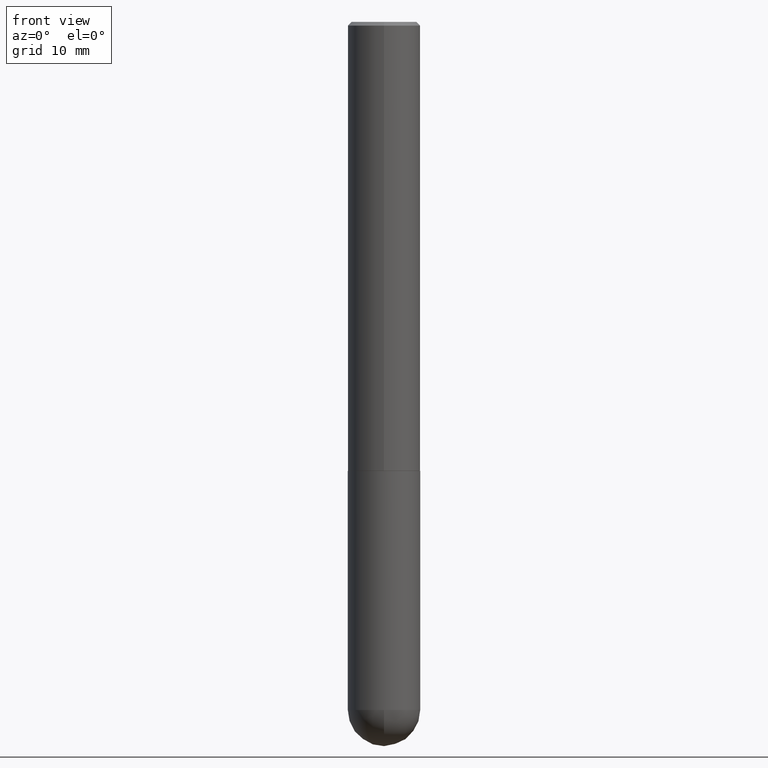
[diagram: clean part render]
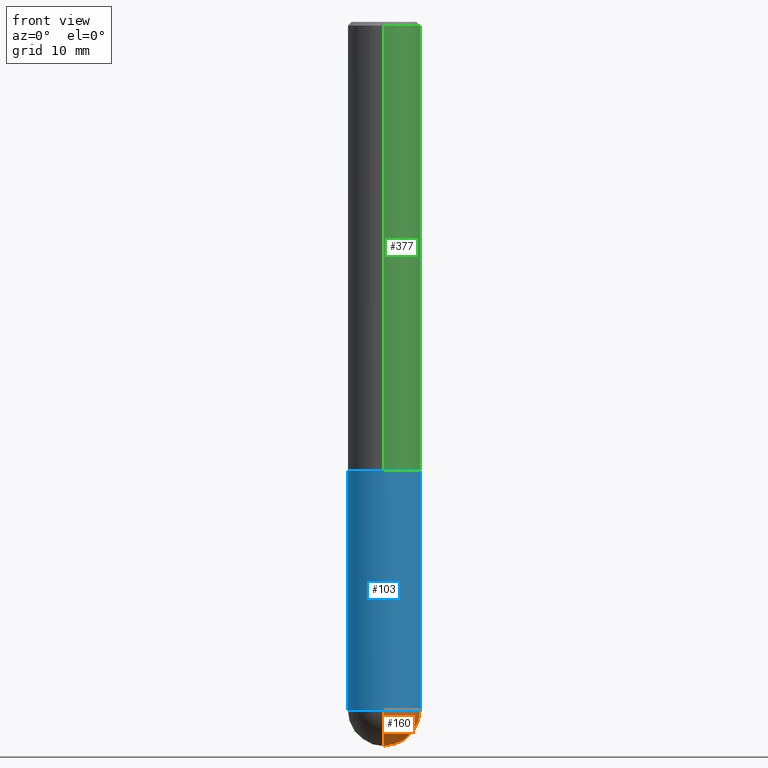
[diagram: same view with three faces highlighted in distinct colors, each labeled with its STEP entity id]
A machine part, front view with three faces highlighted in distinct colors.
Their STEP definitions:

[orange] entity #160 — the highlighted spherical surface has radius 5 mm.
#1 = DIRECTION ( 'NONE',  ( -7.105427357601001070E-15, -1.000000000000000000, 0.000000000000000000 ) ) ;
#4 = AXIS2_PLACEMENT_3D ( 'NONE', #114, #113, #147 ) ;
#10 = DIRECTION ( 'NONE',  ( -1.000000000000000000, 6.982962677686265922E-15, -4.883557194083113462E-29 ) ) ;
#11 = CARTESIAN_POINT ( 'NONE',  ( -1.398703375343667858E-15, -0.1968500000000133754, -3.740150000000000308 ) ) ;
#13 = ORIENTED_EDGE ( 'NONE', *, *, #131, .F. ) ;
#25 = CARTESIAN_POINT ( 'NONE',  ( 8.815300377539453183E-29, -1.353284629761424370E-14, -3.740150000000000308 ) ) ;
#30 = CARTESIAN_POINT ( 'NONE',  ( 9.146420155453340551E-29, -1.305866392947419340E-14, -3.740150000000000752 ) ) ;
#34 = CARTESIAN_POINT ( 'NONE',  ( 0.1968499999999999694, -1.216510656783075637E-14, -3.740150000000000752 ) ) ;
#36 = CARTESIAN_POINT ( 'NONE',  ( 8.815300377539453183E-29, -1.353284629761424370E-14, -3.740150000000000308 ) ) ;
#39 = VERTEX_POINT ( 'NONE', #259 ) ;
#66 = ORIENTED_EDGE ( 'NONE', *, *, #94, .F. ) ;
#82 = VERTEX_POINT ( 'NONE', #34 ) ;
#89 = AXIS2_PLACEMENT_3D ( 'NONE', #134, #257, #326 ) ;
#94 = EDGE_CURVE ( 'NONE', #39, #287, #401, .T. ) ;
#110 = FACE_OUTER_BOUND ( 'NONE', #311, .T. ) ;
#113 = DIRECTION ( 'NONE',  ( 1.000000000000000000, -6.982962677686265922E-15, 4.883557194083112340E-29 ) ) ;
#114 = CARTESIAN_POINT ( 'NONE',  ( 8.815300377539453183E-29, -1.353284629761424370E-14, -3.740150000000000308 ) ) ;
#122 = EDGE_CURVE ( 'NONE', #287, #82, #283, .T. ) ;
#131 = EDGE_CURVE ( 'NONE', #82, #346, #355, .T. ) ;
#134 = CARTESIAN_POINT ( 'NONE',  ( 9.146420155453340551E-29, -1.305866392947419340E-14, -3.740150000000000752 ) ) ;
#140 = DIRECTION ( 'NONE',  ( -1.000000000000000000, 7.105427357601001070E-15, -4.926315508542082329E-29 ) ) ;
#147 = DIRECTION ( 'NONE',  ( 6.982962677686265922E-15, 1.000000000000000000, 0.000000000000000000 ) ) ;
#160 = ADVANCED_FACE ( 'NONE', ( #110 ), #231, .T. ) ;
#166 = DIRECTION ( 'NONE',  ( -2.445468806185136597E-29, 3.491481338843145583E-15, 1.000000000000000000 ) ) ;
#203 = AXIS2_PLACEMENT_3D ( 'NONE', #36, #10, #234 ) ;
#214 = EDGE_CURVE ( 'NONE', #39, #346, #339, .T. ) ;
#231 = SPHERICAL_SURFACE ( 'NONE', #203, 0.1968500000000001360 ) ;
#234 = DIRECTION ( 'NONE',  ( 6.982962677686265922E-15, 1.000000000000000000, -2.775563112689114723E-15 ) ) ;
#241 = CARTESIAN_POINT ( 'NONE',  ( 1.374596203102631736E-15, 0.1968499999999867855, -3.740150000000001196 ) ) ;
#257 = DIRECTION ( 'NONE',  ( -2.445468806185136597E-29, 3.491481338843145583E-15, 1.000000000000000000 ) ) ;
#259 = CARTESIAN_POINT ( 'NONE',  ( 9.305107886238245984E-29, -1.420809081304490838E-14, -3.937000000000000721 ) ) ;
#283 = CIRCLE ( 'NONE', #89, 0.1968499999999999694 ) ;
#287 = VERTEX_POINT ( 'NONE', #11 ) ;
#293 = DIRECTION ( 'NONE',  ( 1.000000000000000000, -6.982962677686269866E-15, 0.000000000000000000 ) ) ;
#297 = AXIS2_PLACEMENT_3D ( 'NONE', #25, #140, #1 ) ;
#311 = EDGE_LOOP ( 'NONE', ( #66, #341, #13, #381 ) ) ;
#326 = DIRECTION ( 'NONE',  ( 1.000000000000000000, -6.982962677686269866E-15, 0.000000000000000000 ) ) ;
#328 = AXIS2_PLACEMENT_3D ( 'NONE', #30, #166, #293 ) ;
#339 = CIRCLE ( 'NONE', #4, 0.1968500000000001360 ) ;
#341 = ORIENTED_EDGE ( 'NONE', *, *, #214, .T. ) ;
#346 = VERTEX_POINT ( 'NONE', #241 ) ;
#355 = CIRCLE ( 'NONE', #328, 0.1968499999999999694 ) ;
#381 = ORIENTED_EDGE ( 'NONE', *, *, #122, .F. ) ;
#401 = CIRCLE ( 'NONE', #297, 0.1968500000000001360 ) ;

[blue] entity #103 — the highlighted cylindrical surface (edge-blend (fillet) strip) has radius 5 mm, axis along (-0, 0, 1).
#11 = CARTESIAN_POINT ( 'NONE',  ( -1.398703375343667858E-15, -0.1968500000000133754, -3.740150000000000308 ) ) ;
#16 = ORIENTED_EDGE ( 'NONE', *, *, #142, .T. ) ;
#22 = ORIENTED_EDGE ( 'NONE', *, *, #54, .F. ) ;
#34 = CARTESIAN_POINT ( 'NONE',  ( 0.1968499999999999694, -1.216510656783075637E-14, -3.740150000000000752 ) ) ;
#38 = EDGE_CURVE ( 'NONE', #158, #313, #408, .T. ) ;
#53 = ORIENTED_EDGE ( 'NONE', *, *, #38, .F. ) ;
#54 = EDGE_CURVE ( 'NONE', #255, #158, #357, .T. ) ;
#64 = DIRECTION ( 'NONE',  ( -2.445468806185136597E-29, 3.491481338843145583E-15, 1.000000000000000000 ) ) ;
#70 = DIRECTION ( 'NONE',  ( -2.445468806185136597E-29, 3.491481338843145583E-15, 1.000000000000000000 ) ) ;
#82 = VERTEX_POINT ( 'NONE', #34 ) ;
#89 = AXIS2_PLACEMENT_3D ( 'NONE', #134, #257, #326 ) ;
#97 = DIRECTION ( 'NONE',  ( -2.445468806185136877E-29, 3.491481338843145188E-15, 1.000000000000000000 ) ) ;
#102 = CYLINDRICAL_SURFACE ( 'NONE', #251, 0.1968499999999999694 ) ;
#103 = ADVANCED_FACE ( 'NONE', ( #132 ), #102, .T. ) ;
#108 = CARTESIAN_POINT ( 'NONE',  ( -0.1968499999999999694, -9.391806989384456184E-15, -3.740150000000000752 ) ) ;
#122 = EDGE_CURVE ( 'NONE', #287, #82, #283, .T. ) ;
#132 = FACE_OUTER_BOUND ( 'NONE', #376, .T. ) ;
#134 = CARTESIAN_POINT ( 'NONE',  ( 9.146420155453340551E-29, -1.305866392947419340E-14, -3.740150000000000752 ) ) ;
#136 = CARTESIAN_POINT ( 'NONE',  ( 5.969144809017299038E-29, -8.522356799982232966E-15, -2.440900000000000070 ) ) ;
#142 = EDGE_CURVE ( 'NONE', #255, #287, #237, .T. ) ;
#158 = VERTEX_POINT ( 'NONE', #168 ) ;
#168 = CARTESIAN_POINT ( 'NONE',  ( -0.1968500000000000250, -9.391806989384456184E-15, -2.440900000000000070 ) ) ;
#181 = CARTESIAN_POINT ( 'NONE',  ( 0.1968500000000000250, -9.896953003084774574E-15, -2.440900000000000070 ) ) ;
#184 = VECTOR ( 'NONE', #97, 39.37007874015748143 ) ;
#185 = LINE ( 'NONE', #244, #380 ) ;
#196 = CARTESIAN_POINT ( 'NONE',  ( -0.1968499999999999694, 1.398703375343756999E-15, -9.682923725166782276E-30 ) ) ;
#204 = CARTESIAN_POINT ( 'NONE',  ( 9.146420155453340551E-29, -1.305866392947419340E-14, -3.740150000000000752 ) ) ;
#225 = DIRECTION ( 'NONE',  ( 1.000000000000000000, -6.982962677686266711E-15, 4.876176775795935793E-29 ) ) ;
#236 = DIRECTION ( 'NONE',  ( 1.000000000000000000, -6.982962677686269866E-15, 0.000000000000000000 ) ) ;
#237 = CIRCLE ( 'NONE', #332, 0.1968499999999999694 ) ;
#244 = CARTESIAN_POINT ( 'NONE',  ( 0.1968499999999999694, -1.374596203102541411E-15, 9.598753983154298056E-30 ) ) ;
#251 = AXIS2_PLACEMENT_3D ( 'NONE', #354, #64, #225 ) ;
#255 = VERTEX_POINT ( 'NONE', #108 ) ;
#257 = DIRECTION ( 'NONE',  ( -2.445468806185136597E-29, 3.491481338843145583E-15, 1.000000000000000000 ) ) ;
#283 = CIRCLE ( 'NONE', #89, 0.1968499999999999694 ) ;
#287 = VERTEX_POINT ( 'NONE', #11 ) ;
#299 = ORIENTED_EDGE ( 'NONE', *, *, #122, .T. ) ;
#308 = AXIS2_PLACEMENT_3D ( 'NONE', #136, #70, #389 ) ;
#313 = VERTEX_POINT ( 'NONE', #181 ) ;
#326 = DIRECTION ( 'NONE',  ( 1.000000000000000000, -6.982962677686269866E-15, 0.000000000000000000 ) ) ;
#332 = AXIS2_PLACEMENT_3D ( 'NONE', #204, #335, #236 ) ;
#335 = DIRECTION ( 'NONE',  ( -2.445468806185136597E-29, 3.491481338843145583E-15, 1.000000000000000000 ) ) ;
#343 = ORIENTED_EDGE ( 'NONE', *, *, #351, .T. ) ;
#351 = EDGE_CURVE ( 'NONE', #82, #313, #185, .T. ) ;
#354 = CARTESIAN_POINT ( 'NONE',  ( 0.000000000000000000, 0.000000000000000000, 0.000000000000000000 ) ) ;
#357 = LINE ( 'NONE', #196, #184 ) ;
#376 = EDGE_LOOP ( 'NONE', ( #22, #16, #299, #343, #53 ) ) ;
#380 = VECTOR ( 'NONE', #407, 39.37007874015748143 ) ;
#389 = DIRECTION ( 'NONE',  ( 1.000000000000000000, -6.982962677686262766E-15, 0.000000000000000000 ) ) ;
#407 = DIRECTION ( 'NONE',  ( -2.445468806185136877E-29, 3.491481338843145188E-15, 1.000000000000000000 ) ) ;
#408 = CIRCLE ( 'NONE', #308, 0.1968500000000000250 ) ;

[green] entity #377 — the highlighted cylindrical surface (edge-blend (fillet) strip) has radius 5 mm, axis along (-0, 0, 1).
#2 = DIRECTION ( 'NONE',  ( -6.982962677686265133E-15, -1.000000000000000000, 3.491137977679279029E-15 ) ) ;
#32 = CIRCLE ( 'NONE', #273, 0.1968500000000000527 ) ;
#41 = CARTESIAN_POINT ( 'NONE',  ( 1.398703375343789145E-15, 0.1968499999999918093, -2.439900000000000624 ) ) ;
#58 = CYLINDRICAL_SURFACE ( 'NONE', #156, 0.1968500000000001915 ) ;
#72 = DIRECTION ( 'NONE',  ( -2.444480225679141495E-29, 3.492897042394238758E-15, 1.000000000000000000 ) ) ;
#74 = CARTESIAN_POINT ( 'NONE',  ( -1.350489030861325626E-15, -0.1968500000000001082, -0.01999999999999935510 ) ) ;
#80 = CARTESIAN_POINT ( 'NONE',  ( 0.000000000000000000, 0.000000000000000000, 0.000000000000000000 ) ) ;
#93 = EDGE_LOOP ( 'NONE', ( #248, #105, #252, #384 ) ) ;
#105 = ORIENTED_EDGE ( 'NONE', *, *, #282, .T. ) ;
#115 = EDGE_CURVE ( 'NONE', #150, #157, #32, .T. ) ;
#150 = VERTEX_POINT ( 'NONE', #74 ) ;
#155 = CARTESIAN_POINT ( 'NONE',  ( -1.374596203102484021E-15, -0.1968500000000088512, -2.439899999999998847 ) ) ;
#156 = AXIS2_PLACEMENT_3D ( 'NONE', #80, #375, #250 ) ;
#157 = VERTEX_POINT ( 'NONE', #306 ) ;
#169 = LINE ( 'NONE', #300, #266 ) ;
#179 = DIRECTION ( 'NONE',  ( -2.444480225679141495E-29, 3.492897042394238758E-15, 1.000000000000000000 ) ) ;
#183 = EDGE_CURVE ( 'NONE', #337, #150, #369, .T. ) ;
#191 = CARTESIAN_POINT ( 'NONE',  ( 4.888960451358293429E-31, -6.985794084788491174E-17, -0.02000000000000004205 ) ) ;
#213 = VERTEX_POINT ( 'NONE', #41 ) ;
#248 = ORIENTED_EDGE ( 'NONE', *, *, #409, .T. ) ;
#250 = DIRECTION ( 'NONE',  ( -6.982962677686265133E-15, -1.000000000000000000, 3.492897042394238758E-15 ) ) ;
#252 = ORIENTED_EDGE ( 'NONE', *, *, #115, .F. ) ;
#266 = VECTOR ( 'NONE', #298, 39.37007874015748143 ) ;
#269 = AXIS2_PLACEMENT_3D ( 'NONE', #315, #179, #382 ) ;
#273 = AXIS2_PLACEMENT_3D ( 'NONE', #191, #387, #2 ) ;
#282 = EDGE_CURVE ( 'NONE', #213, #157, #169, .T. ) ;
#298 = DIRECTION ( 'NONE',  ( -2.444480225679141495E-29, 3.492897042394238758E-15, 1.000000000000000000 ) ) ;
#300 = CARTESIAN_POINT ( 'NONE',  ( 1.398703375343758182E-15, 0.1968500000000001915, -6.875767827953065398E-16 ) ) ;
#306 = CARTESIAN_POINT ( 'NONE',  ( 1.374596203102542200E-15, 0.1968499999999999694, -0.02000000000000072900 ) ) ;
#315 = CARTESIAN_POINT ( 'NONE',  ( 5.964287302634537555E-29, -8.522319493737701952E-15, -2.439899999999999736 ) ) ;
#337 = VERTEX_POINT ( 'NONE', #155 ) ;
#342 = FACE_OUTER_BOUND ( 'NONE', #93, .T. ) ;
#366 = VECTOR ( 'NONE', #72, 39.37007874015748143 ) ;
#369 = LINE ( 'NONE', #399, #366 ) ;
#375 = DIRECTION ( 'NONE',  ( -2.444480225679141495E-29, 3.492897042394238758E-15, 1.000000000000000000 ) ) ;
#377 = ADVANCED_FACE ( 'NONE', ( #342 ), #58, .T. ) ;
#382 = DIRECTION ( 'NONE',  ( -6.982962677686265133E-15, -1.000000000000000000, 4.163344669033668535E-15 ) ) ;
#384 = ORIENTED_EDGE ( 'NONE', *, *, #183, .F. ) ;
#387 = DIRECTION ( 'NONE',  ( -2.444480225679141495E-29, 3.492897042394238758E-15, 1.000000000000000000 ) ) ;
#396 = CIRCLE ( 'NONE', #269, 0.1968500000000003303 ) ;
#399 = CARTESIAN_POINT ( 'NONE',  ( -1.374596203102542594E-15, -0.1968500000000001915, 6.875767827953065398E-16 ) ) ;
#409 = EDGE_CURVE ( 'NONE', #337, #213, #396, .T. ) ;